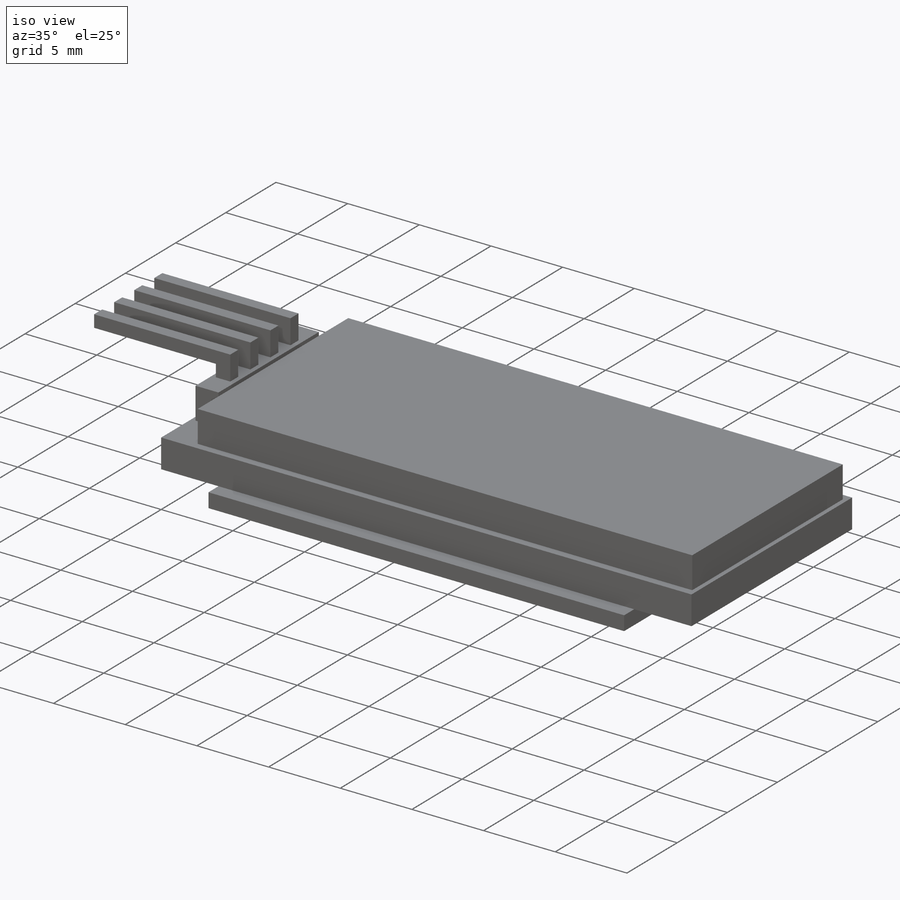
[diagram: iso view]
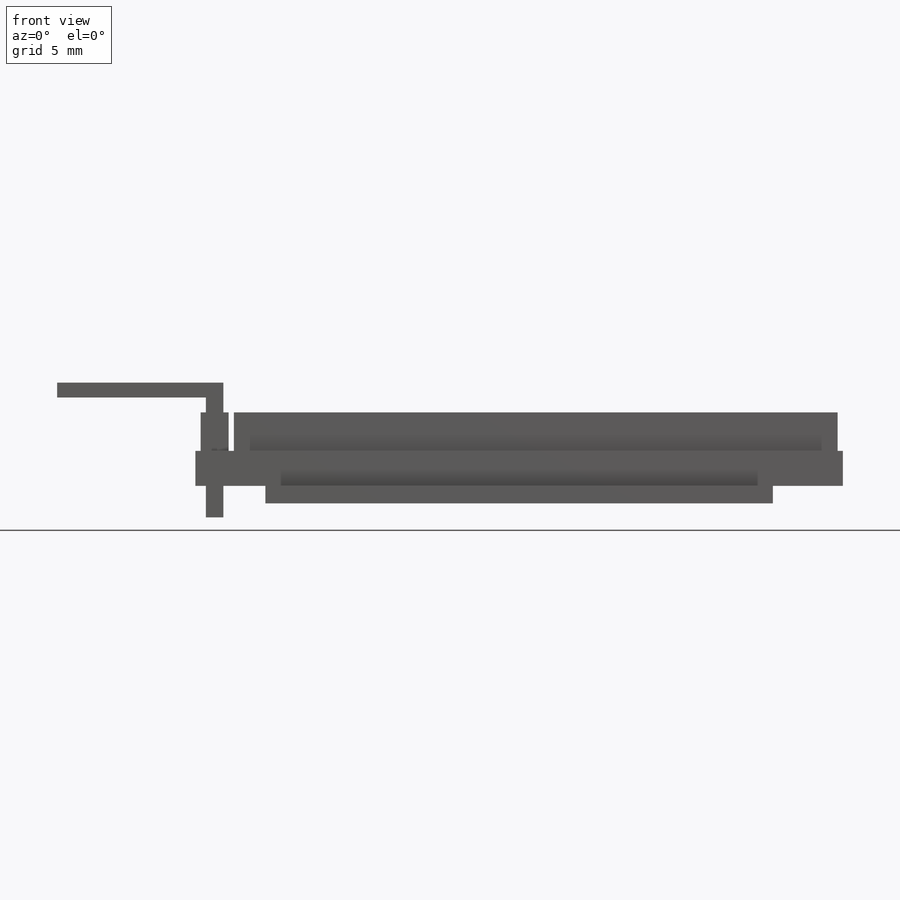
[diagram: front view]
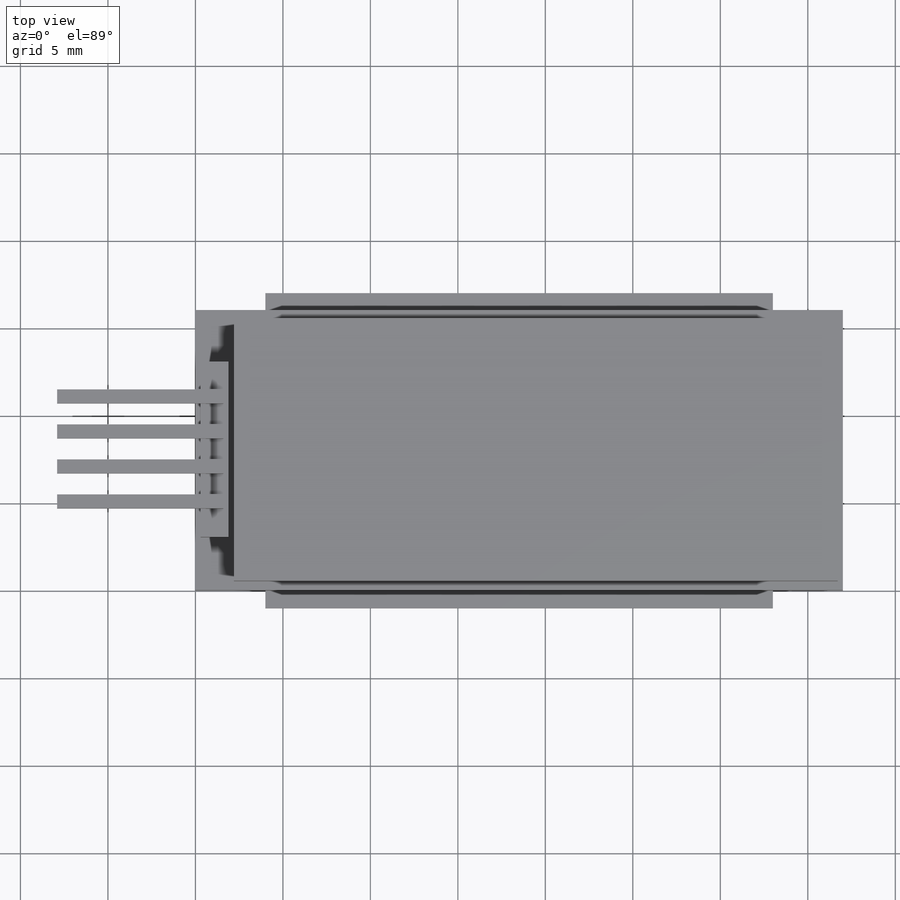
[diagram: top view]
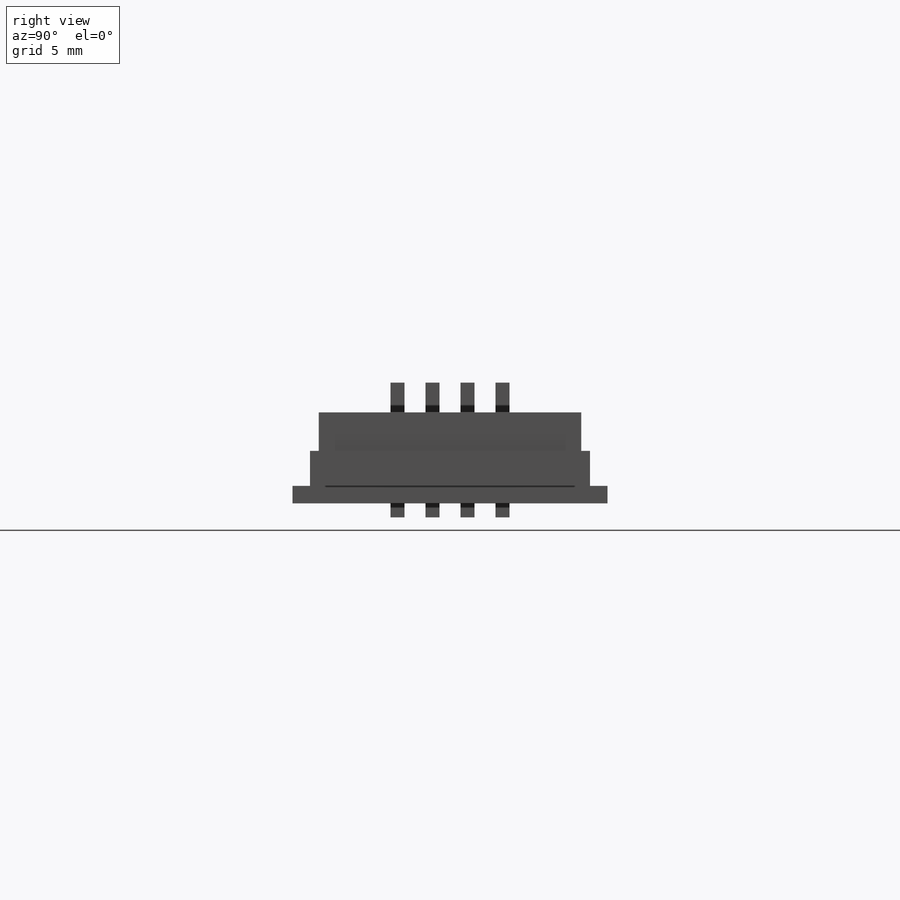
[diagram: right view]
SOLIDWORKS PART (.sldprt)
format: sldprt  version: not decoded by parser v0  size: 284,160 bytes
history: native  units: mm
features: sketch x6, extrude x6, material x1 (+12 scaffold rows collapsed)
feature tree (25):
  scaffold x12  (default folders/planes/origin — collapsed)
  material  "Material <not specified>"
  sketch  "Sketch1"  dims[D1=37.0mm D2=16.0mm]
  extrude  "Boss-Extrude1"  Depth=2mm
  sketch  "Sketch2"  dims[D1=0.3mm D2=15.0mm D3=0.5mm D4=2.2mm]
  extrude  "Boss-Extrude2"  Depth=2.2mm
  sketch  "Sketch3"  dims[D1=10.0mm D2=3.0mm D3=0.3mm D4=1.6mm]
  extrude  "Boss-Extrude3"  Depth=2.2mm
  sketch  "Sketch4"  dims[D1=1.0mm D2=0.3mm D3=1.6mm D4=0.8mm D6=1.7mm D5=4.0]
  extrude  "Boss-Extrude4"  Depth=1.7mm
  sketch  "Sketch5"  dims[D1=0.8mm]
  extrude  "Boss-Extrude5"  Depth=8.5mm
  sketch  "Sketch6"  dims[D1=29.0mm D2=4.0mm D3=18.0mm D4=1.0mm]
  extrude  "Boss-Extrude6"  Depth=1mm
decode coverage: 12 of 12 modeling features carry decoded parameters
note: suppression state not decoded; provenance and decode notes live in map.json
